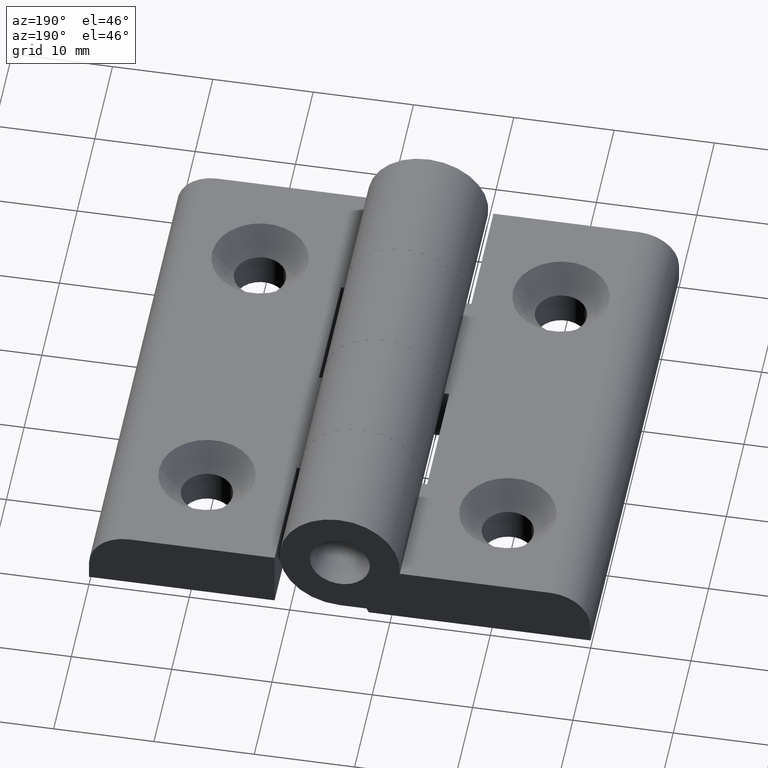
[diagram: clean part render]
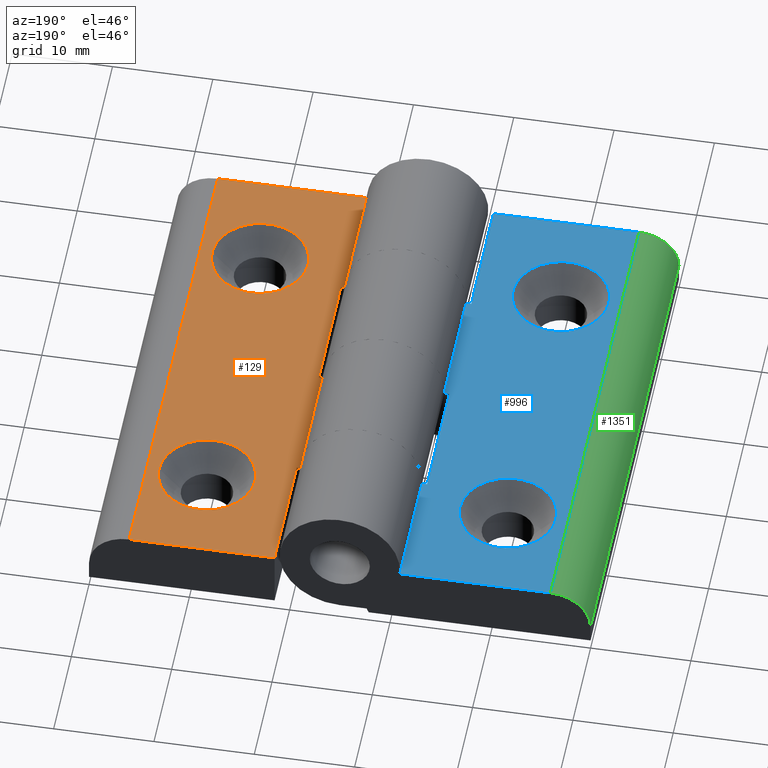
[diagram: same view with three faces highlighted in distinct colors, each labeled with its STEP entity id]
A machine part, auxiliary view with three faces highlighted in distinct colors.
Their STEP definitions:

[orange] entity #129 — the highlighted planar face has unit normal (0, 0, -1).
#2=CARTESIAN_POINT('',(5.999988002817645,-9.999979999960942,5.999987994638560));
#3=DIRECTION('',(0.0,0.0,-1.0));
#4=DIRECTION('',(-1.0,0.0,0.0));
#5=AXIS2_PLACEMENT_3D('',#2,#3,#4);
#6=PLANE('',#5);
#7=CARTESIAN_POINT('',(5.999988002817645,-9.999979999960942,5.999987994638560));
#8=VERTEX_POINT('',#7);
#9=CARTESIAN_POINT('',(5.999988002817645,40.000020000039058,5.999987994638556));
#10=VERTEX_POINT('',#9);
#11=CARTESIAN_POINT('',(5.999988002817645,-9.999979999960942,5.999987994638560));
#12=DIRECTION('',(0.0,1.0,0.0));
#13=VECTOR('',#12,50.0);
#14=LINE('',#11,#13);
#15=EDGE_CURVE('',#8,#10,#14,.T.);
#16=ORIENTED_EDGE('',*,*,#15,.T.);
#17=CARTESIAN_POINT('',(-8.499982999967415,40.000020000039058,5.999987994638556));
#18=VERTEX_POINT('',#17);
#19=CARTESIAN_POINT('',(5.999988002817645,40.000020000039058,5.999987994638556));
#20=DIRECTION('',(-1.0,0.0,0.0));
#21=VECTOR('',#20,14.499971002785060);
#22=LINE('',#19,#21);
#23=EDGE_CURVE('',#10,#18,#22,.T.);
#24=ORIENTED_EDGE('',*,*,#23,.T.);
#25=CARTESIAN_POINT('',(-8.499982999967415,27.499944999889060,5.999987994638557));
#26=VERTEX_POINT('',#25);
#27=CARTESIAN_POINT('',(-8.499982999967415,40.000020000039058,5.999987994638556));
#28=DIRECTION('',(0.0,-1.0,0.0));
#29=VECTOR('',#28,12.500075000149998);
#30=LINE('',#27,#29);
#31=EDGE_CURVE('',#18,#26,#30,.T.);
#32=ORIENTED_EDGE('',*,*,#31,.T.);
#33=CARTESIAN_POINT('',(-9.020851587120433,27.499944999889060,5.999987994638557));
#34=VERTEX_POINT('',#33);
#35=CARTESIAN_POINT('',(-9.020851587120433,27.499944999889060,5.999987994638557));
#36=DIRECTION('',(1.0,0.0,0.0));
#37=VECTOR('',#36,0.520868587153018);
#38=LINE('',#35,#37);
#39=EDGE_CURVE('',#34,#26,#38,.T.);
#40=ORIENTED_EDGE('',*,*,#39,.F.);
#41=CARTESIAN_POINT('',(-9.020851587120433,14.999969999938902,5.999987994638558));
#42=VERTEX_POINT('',#41);
#43=CARTESIAN_POINT('',(-9.020851587120433,14.999969999938902,5.999987994638558));
#44=DIRECTION('',(0.0,1.0,0.0));
#45=VECTOR('',#44,12.499974999950158);
#46=LINE('',#43,#45);
#47=EDGE_CURVE('',#42,#34,#46,.T.);
#48=ORIENTED_EDGE('',*,*,#47,.F.);
#49=CARTESIAN_POINT('',(-8.499982999966505,14.999969999938902,5.999987994638558));
#50=VERTEX_POINT('',#49);
#51=CARTESIAN_POINT('',(-9.020851587120433,14.999969999938902,5.999987994638558));
#52=DIRECTION('',(1.0,0.0,0.0));
#53=VECTOR('',#52,0.520868587153927);
#54=LINE('',#51,#53);
#55=EDGE_CURVE('',#42,#50,#54,.T.);
#56=ORIENTED_EDGE('',*,*,#55,.T.);
#57=CARTESIAN_POINT('',(-8.499982999966505,2.499994999990122,5.999987994638559));
#58=VERTEX_POINT('',#57);
#59=CARTESIAN_POINT('',(-8.499982999966505,14.999969999938902,5.999987994638558));
#60=DIRECTION('',(0.0,-1.0,0.0));
#61=VECTOR('',#60,12.499974999948780);
#62=LINE('',#59,#61);
#63=EDGE_CURVE('',#50,#58,#62,.T.);
#64=ORIENTED_EDGE('',*,*,#63,.T.);
#65=CARTESIAN_POINT('',(-9.020851587120433,2.499994999990122,5.999987994638559));
#66=VERTEX_POINT('',#65);
#67=CARTESIAN_POINT('',(-9.020851587120433,2.499994999990122,5.999987994638559));
#68=DIRECTION('',(1.0,0.0,0.0));
#69=VECTOR('',#68,0.520868587153927);
#70=LINE('',#67,#69);
#71=EDGE_CURVE('',#66,#58,#70,.T.);
#72=ORIENTED_EDGE('',*,*,#71,.F.);
#73=CARTESIAN_POINT('',(-9.020851587120433,-9.999979999960942,5.999987994638560));
#74=VERTEX_POINT('',#73);
#75=CARTESIAN_POINT('',(-9.020851587120433,-9.999979999960942,5.999987994638560));
#76=DIRECTION('',(0.0,1.0,0.0));
#77=VECTOR('',#76,12.499974999951064);
#78=LINE('',#75,#77);
#79=EDGE_CURVE('',#74,#66,#78,.T.);
#80=ORIENTED_EDGE('',*,*,#79,.F.);
#81=CARTESIAN_POINT('',(5.999988002817645,-9.999979999960942,5.999987994638560));
#82=DIRECTION('',(-1.0,0.0,0.0));
#83=VECTOR('',#82,15.020839589938078);
#84=LINE('',#81,#83);
#85=EDGE_CURVE('',#8,#74,#84,.T.);
#86=ORIENTED_EDGE('',*,*,#85,.F.);
#87=EDGE_LOOP('',(#16,#24,#32,#40,#48,#56,#64,#72,#80,#86));
#88=FACE_OUTER_BOUND('',#87,.T.);
#89=CARTESIAN_POINT('',(4.786627014715577,3.673933E-016,5.999987994638559));
#90=VERTEX_POINT('',#89);
#91=CARTESIAN_POINT('',(-4.786627014715577,3.673933E-016,5.999987994638559));
#92=VERTEX_POINT('',#91);
#93=CARTESIAN_POINT('',(0.0,3.673933E-016,5.999987994638559));
#94=DIRECTION('',(0.0,-6.123234E-017,-1.0));
#95=DIRECTION('',(1.0,0.0,0.0));
#96=AXIS2_PLACEMENT_3D('',#93,#94,#95);
#97=CIRCLE('',#96,4.786627014715577);
#98=EDGE_CURVE('',#90,#92,#97,.T.);
#99=ORIENTED_EDGE('',*,*,#98,.T.);
#100=CARTESIAN_POINT('',(0.0,3.673933E-016,5.999987994638559));
#101=DIRECTION('',(0.0,-6.123234E-017,-1.0));
#102=DIRECTION('',(1.0,0.0,0.0));
#103=AXIS2_PLACEMENT_3D('',#100,#101,#102);
#104=CIRCLE('',#103,4.786627014715577);
#105=EDGE_CURVE('',#92,#90,#104,.T.);
#106=ORIENTED_EDGE('',*,*,#105,.T.);
#107=EDGE_LOOP('',(#99,#106));
#108=FACE_BOUND('',#107,.T.);
#109=CARTESIAN_POINT('',(4.786627014715577,30.0,5.999987994638557));
#110=VERTEX_POINT('',#109);
#111=CARTESIAN_POINT('',(-4.786627014715577,30.0,5.999987994638557));
#112=VERTEX_POINT('',#111);
#113=CARTESIAN_POINT('',(0.0,30.0,5.999987994638557));
#114=DIRECTION('',(0.0,-6.123234E-017,-1.0));
#115=DIRECTION('',(1.0,0.0,0.0));
#116=AXIS2_PLACEMENT_3D('',#113,#114,#115);
#117=CIRCLE('',#116,4.786627014715577);
#118=EDGE_CURVE('',#110,#112,#117,.T.);
#119=ORIENTED_EDGE('',*,*,#118,.T.);
#120=CARTESIAN_POINT('',(0.0,30.0,5.999987994638557));
#121=DIRECTION('',(0.0,-6.123234E-017,-1.0));
#122=DIRECTION('',(1.0,0.0,0.0));
#123=AXIS2_PLACEMENT_3D('',#120,#121,#122);
#124=CIRCLE('',#123,4.786627014715577);
#125=EDGE_CURVE('',#112,#110,#124,.T.);
#126=ORIENTED_EDGE('',*,*,#125,.T.);
#127=EDGE_LOOP('',(#119,#126));
#128=FACE_BOUND('',#127,.T.);
#129=ADVANCED_FACE('',(#88,#108,#128),#6,.F.);

[blue] entity #996 — the highlighted planar face has unit normal (0, 0, -1).
#869=CARTESIAN_POINT('',(-35.999928002698198,39.999919999840124,5.999987994638556));
#870=DIRECTION('',(0.0,0.0,-1.0));
#871=DIRECTION('',(1.0,0.0,0.0));
#872=AXIS2_PLACEMENT_3D('',#869,#870,#871);
#873=PLANE('',#872);
#874=CARTESIAN_POINT('',(-35.999928002698198,39.999919999840124,5.999987994638556));
#875=VERTEX_POINT('',#874);
#876=CARTESIAN_POINT('',(-35.999928002698198,-10.000080000159876,5.999987994638560));
#877=VERTEX_POINT('',#876);
#878=CARTESIAN_POINT('',(-35.999928002698198,39.999919999840124,5.999987994638556));
#879=DIRECTION('',(0.0,-1.0,0.0));
#880=VECTOR('',#879,50.0);
#881=LINE('',#878,#880);
#882=EDGE_CURVE('',#875,#877,#881,.T.);
#883=ORIENTED_EDGE('',*,*,#882,.T.);
#884=CARTESIAN_POINT('',(-21.499956999913138,-10.000080000159876,5.999987994638560));
#885=VERTEX_POINT('',#884);
#886=CARTESIAN_POINT('',(-35.999928002698198,-10.000080000159874,5.999987994638560));
#887=DIRECTION('',(1.0,0.0,0.0));
#888=VECTOR('',#887,14.499971002785060);
#889=LINE('',#886,#888);
#890=EDGE_CURVE('',#877,#885,#889,.T.);
#891=ORIENTED_EDGE('',*,*,#890,.T.);
#892=CARTESIAN_POINT('',(-21.499956999913138,2.499994999990122,5.999987994638559));
#893=VERTEX_POINT('',#892);
#894=CARTESIAN_POINT('',(-21.499956999913138,-10.000080000159876,5.999987994638560));
#895=DIRECTION('',(0.0,1.0,0.0));
#896=VECTOR('',#895,12.500075000149998);
#897=LINE('',#894,#896);
#898=EDGE_CURVE('',#885,#893,#897,.T.);
#899=ORIENTED_EDGE('',*,*,#898,.T.);
#900=CARTESIAN_POINT('',(-20.979088412760120,2.499994999990122,5.999987994638559));
#901=VERTEX_POINT('',#900);
#902=CARTESIAN_POINT('',(-20.979088412760120,2.499994999990122,5.999987994638559));
#903=DIRECTION('',(-1.0,0.0,0.0));
#904=VECTOR('',#903,0.520868587153018);
#905=LINE('',#902,#904);
#906=EDGE_CURVE('',#901,#893,#905,.T.);
#907=ORIENTED_EDGE('',*,*,#906,.F.);
#908=CARTESIAN_POINT('',(-20.979088412760120,14.999969999940280,5.999987994638558));
#909=VERTEX_POINT('',#908);
#910=CARTESIAN_POINT('',(-20.979088412760124,14.999969999940280,5.999987994638558));
#911=DIRECTION('',(0.0,-1.0,0.0));
#912=VECTOR('',#911,12.499974999950158);
#913=LINE('',#910,#912);
#914=EDGE_CURVE('',#909,#901,#913,.T.);
#915=ORIENTED_EDGE('',*,*,#914,.F.);
#916=CARTESIAN_POINT('',(-21.499956999914048,14.999969999940280,5.999987994638558));
#917=VERTEX_POINT('',#916);
#918=CARTESIAN_POINT('',(-20.979088412760120,14.999969999940280,5.999987994638558));
#919=DIRECTION('',(-1.0,0.0,0.0));
#920=VECTOR('',#919,0.520868587153927);
#921=LINE('',#918,#920);
#922=EDGE_CURVE('',#909,#917,#921,.T.);
#923=ORIENTED_EDGE('',*,*,#922,.T.);
#924=CARTESIAN_POINT('',(-21.499956999914048,27.499944999889060,5.999987994638557));
#925=VERTEX_POINT('',#924);
#926=CARTESIAN_POINT('',(-21.499956999914048,14.999969999940280,5.999987994638558));
#927=DIRECTION('',(0.0,1.0,0.0));
#928=VECTOR('',#927,12.499974999948780);
#929=LINE('',#926,#928);
#930=EDGE_CURVE('',#917,#925,#929,.T.);
#931=ORIENTED_EDGE('',*,*,#930,.T.);
#932=CARTESIAN_POINT('',(-20.979088412760120,27.499944999889060,5.999987994638557));
#933=VERTEX_POINT('',#932);
#934=CARTESIAN_POINT('',(-20.979088412760120,27.499944999889060,5.999987994638557));
#935=DIRECTION('',(-1.0,0.0,0.0));
#936=VECTOR('',#935,0.520868587153927);
#937=LINE('',#934,#936);
#938=EDGE_CURVE('',#933,#925,#937,.T.);
#939=ORIENTED_EDGE('',*,*,#938,.F.);
#940=CARTESIAN_POINT('',(-20.979088412760120,39.999919999840124,5.999987994638556));
#941=VERTEX_POINT('',#940);
#942=CARTESIAN_POINT('',(-20.979088412760120,39.999919999840124,5.999987994638556));
#943=DIRECTION('',(0.0,-1.0,0.0));
#944=VECTOR('',#943,12.499974999951064);
#945=LINE('',#942,#944);
#946=EDGE_CURVE('',#941,#933,#945,.T.);
#947=ORIENTED_EDGE('',*,*,#946,.F.);
#948=CARTESIAN_POINT('',(-35.999928002698198,39.999919999840124,5.999987994638556));
#949=DIRECTION('',(1.0,0.0,0.0));
#950=VECTOR('',#949,15.020839589938078);
#951=LINE('',#948,#950);
#952=EDGE_CURVE('',#875,#941,#951,.T.);
#953=ORIENTED_EDGE('',*,*,#952,.F.);
#954=EDGE_LOOP('',(#883,#891,#899,#907,#915,#923,#931,#939,#947,#953));
#955=FACE_OUTER_BOUND('',#954,.T.);
#956=CARTESIAN_POINT('',(-34.786567014596130,29.999939999879189,5.999987994638557));
#957=VERTEX_POINT('',#956);
#958=CARTESIAN_POINT('',(-25.213312985164976,29.999939999879182,5.999987994638557));
#959=VERTEX_POINT('',#958);
#960=CARTESIAN_POINT('',(-29.999939999880553,29.999939999879182,5.999987994638557));
#961=DIRECTION('',(0.0,-6.123234E-017,-1.0));
#962=DIRECTION('',(-1.0,1.224647E-016,-7.498799E-033));
#963=AXIS2_PLACEMENT_3D('',#960,#961,#962);
#964=CIRCLE('',#963,4.786627014715577);
#965=EDGE_CURVE('',#957,#959,#964,.T.);
#966=ORIENTED_EDGE('',*,*,#965,.T.);
#967=CARTESIAN_POINT('',(-29.999939999880553,29.999939999879182,5.999987994638557));
#968=DIRECTION('',(0.0,-6.123234E-017,-1.0));
#969=DIRECTION('',(-1.0,1.224647E-016,-7.498799E-033));
#970=AXIS2_PLACEMENT_3D('',#967,#968,#969);
#971=CIRCLE('',#970,4.786627014715577);
#972=EDGE_CURVE('',#959,#957,#971,.T.);
#973=ORIENTED_EDGE('',*,*,#972,.T.);
#974=EDGE_LOOP('',(#966,#973));
#975=FACE_BOUND('',#974,.T.);
#976=CARTESIAN_POINT('',(-34.786567014596130,-0.000060000120818,5.999987994638559));
#977=VERTEX_POINT('',#976);
#978=CARTESIAN_POINT('',(-25.213312985164976,-0.000060000120819,5.999987994638559));
#979=VERTEX_POINT('',#978);
#980=CARTESIAN_POINT('',(-29.999939999880553,-0.000060000120818,5.999987994638559));
#981=DIRECTION('',(0.0,-6.123234E-017,-1.0));
#982=DIRECTION('',(-1.0,1.224647E-016,-7.498799E-033));
#983=AXIS2_PLACEMENT_3D('',#980,#981,#982);
#984=CIRCLE('',#983,4.786627014715577);
#985=EDGE_CURVE('',#977,#979,#984,.T.);
#986=ORIENTED_EDGE('',*,*,#985,.T.);
#987=CARTESIAN_POINT('',(-29.999939999880553,-0.000060000120818,5.999987994638559));
#988=DIRECTION('',(0.0,-6.123234E-017,-1.0));
#989=DIRECTION('',(-1.0,1.224647E-016,-7.498799E-033));
#990=AXIS2_PLACEMENT_3D('',#987,#988,#989);
#991=CIRCLE('',#990,4.786627014715577);
#992=EDGE_CURVE('',#979,#977,#991,.T.);
#993=ORIENTED_EDGE('',*,*,#992,.T.);
#994=EDGE_LOOP('',(#986,#993));
#995=FACE_BOUND('',#994,.T.);
#996=ADVANCED_FACE('',(#955,#975,#995),#873,.F.);

[green] entity #1351 — the highlighted cylindrical surface (partial cylindrical patch) has radius 4 mm, axis along (0, 1, -0).
#874=CARTESIAN_POINT('',(-35.999928002698198,39.999919999840124,5.999987994638556));
#875=VERTEX_POINT('',#874);
#876=CARTESIAN_POINT('',(-35.999928002698198,-10.000080000159876,5.999987994638560));
#877=VERTEX_POINT('',#876);
#878=CARTESIAN_POINT('',(-35.999928002698198,39.999919999840124,5.999987994638556));
#879=DIRECTION('',(0.0,-1.0,0.0));
#880=VECTOR('',#879,50.0);
#881=LINE('',#878,#880);
#882=EDGE_CURVE('',#875,#877,#881,.T.);
#1303=CARTESIAN_POINT('',(-39.999919999840586,-10.000080000159876,1.999995997496172));
#1304=VERTEX_POINT('',#1303);
#1311=CARTESIAN_POINT('',(-39.999919999840586,39.999919999840124,1.999995997496169));
#1312=VERTEX_POINT('',#1311);
#1313=CARTESIAN_POINT('',(-39.999919999840586,39.999919999840124,1.999995997496169));
#1314=DIRECTION('',(0.0,-1.0,0.0));
#1315=VECTOR('',#1314,50.0);
#1316=LINE('',#1313,#1315);
#1317=EDGE_CURVE('',#1312,#1304,#1316,.T.);
#1328=CARTESIAN_POINT('',(-35.999928002698198,39.999919999840124,1.999995997496169));
#1329=DIRECTION('',(1.224647E-016,1.0,-6.123234E-017));
#1330=DIRECTION('',(-1.0,1.224647E-016,-7.498799E-033));
#1331=AXIS2_PLACEMENT_3D('',#1328,#1329,#1330);
#1332=CYLINDRICAL_SURFACE('',#1331,3.999991997142388);
#1333=ORIENTED_EDGE('',*,*,#1317,.T.);
#1334=CARTESIAN_POINT('',(-35.999928002698198,-10.000080000159874,1.999995997496172));
#1335=DIRECTION('',(1.224647E-016,1.0,-6.123234E-017));
#1336=DIRECTION('',(-1.0,1.224647E-016,-7.498799E-033));
#1337=AXIS2_PLACEMENT_3D('',#1334,#1335,#1336);
#1338=CIRCLE('',#1337,3.999991997142388);
#1339=EDGE_CURVE('',#1304,#877,#1338,.T.);
#1340=ORIENTED_EDGE('',*,*,#1339,.T.);
#1341=ORIENTED_EDGE('',*,*,#882,.F.);
#1342=CARTESIAN_POINT('',(-35.999928002698198,39.999919999840124,1.999995997496169));
#1343=DIRECTION('',(1.224647E-016,1.0,-6.123234E-017));
#1344=DIRECTION('',(-1.0,1.224647E-016,-7.498799E-033));
#1345=AXIS2_PLACEMENT_3D('',#1342,#1343,#1344);
#1346=CIRCLE('',#1345,3.999991997142388);
#1347=EDGE_CURVE('',#1312,#875,#1346,.T.);
#1348=ORIENTED_EDGE('',*,*,#1347,.F.);
#1349=EDGE_LOOP('',(#1333,#1340,#1341,#1348));
#1350=FACE_OUTER_BOUND('',#1349,.T.);
#1351=ADVANCED_FACE('',(#1350),#1332,.T.);